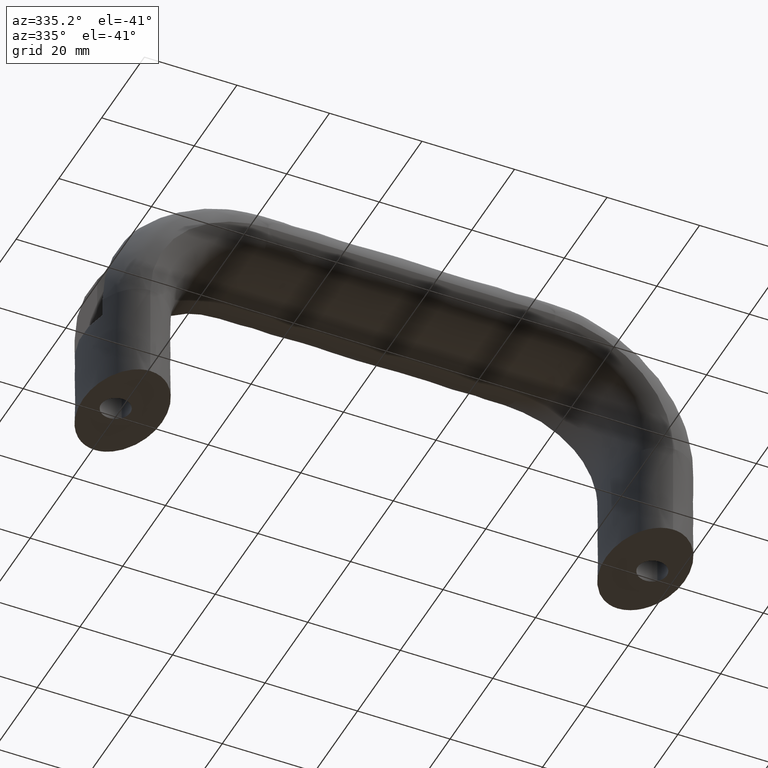
[diagram: clean part render]
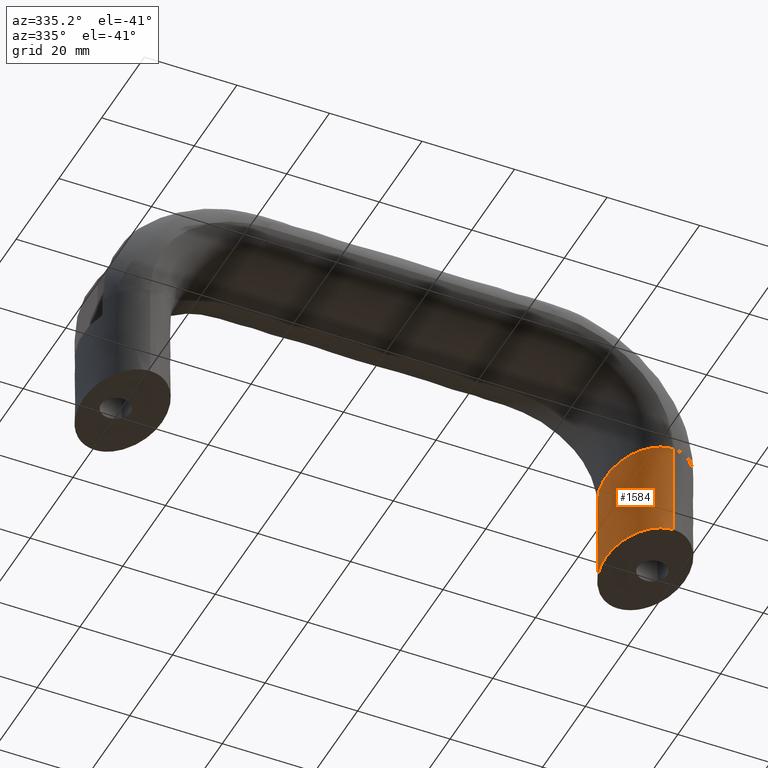
[diagram: same view with one face highlighted and labeled with its STEP entity id]
A machine part, auxiliary view. The second image highlights one B-rep face of the part: STEP entity #1584.
In plain terms, the highlighted face is a freeform B-spline surface patch.
Its self-contained STEP definition (entity closure, byte-faithful):
#1346=CARTESIAN_POINT('',(114.500000000000000,-13.0,0.0));
#1347=VERTEX_POINT('',#1346);
#1348=CARTESIAN_POINT('',(114.500000000000000,13.0,0.0));
#1349=VERTEX_POINT('',#1348);
#1350=CARTESIAN_POINT('',(114.500000000000000,-13.0,0.0));
#1351=CARTESIAN_POINT('',(113.938783469140200,-12.999923555473890,0.0));
#1352=CARTESIAN_POINT('',(112.789287256323800,-12.826448815746449,0.0));
#1353=CARTESIAN_POINT('',(111.166448477824010,-12.048173097890791,0.0));
#1354=CARTESIAN_POINT('',(109.684781999559500,-10.820089666729469,0.0));
#1355=CARTESIAN_POINT('',(108.406739283075100,-9.179092621455494,0.0));
#1356=CARTESIAN_POINT('',(107.355332791935690,-7.203180913506930,0.0));
#1357=CARTESIAN_POINT('',(106.585128865630690,-4.955443427318297,0.0));
#1358=CARTESIAN_POINT('',(106.103593419317510,-2.525474827544324,0.0));
#1359=CARTESIAN_POINT('',(105.947636965267900,-0.000251144950792,0.0));
#1360=CARTESIAN_POINT('',(106.103561763330500,2.525220537792868,0.0));
#1361=CARTESIAN_POINT('',(106.585002686258510,4.954978805941556,0.0));
#1362=CARTESIAN_POINT('',(107.355241463287700,7.202963600868551,0.0));
#1363=CARTESIAN_POINT('',(108.406507364572210,9.178731382855483,0.0));
#1364=CARTESIAN_POINT('',(109.684635495193500,10.819954240114329,0.0));
#1365=CARTESIAN_POINT('',(111.166288104873400,12.048026096018891,0.0));
#1366=CARTESIAN_POINT('',(112.789205874942200,12.826641637256030,0.0));
#1367=CARTESIAN_POINT('',(113.938763128606400,12.999989496861160,0.0));
#1368=CARTESIAN_POINT('',(114.500000000000000,13.0,0.0));
#1369=B_SPLINE_CURVE_WITH_KNOTS('',3,(#1350,#1351,#1352,#1353,#1354,#1355,#1356,#1357,#1358,#1359,#1360,#1361,#1362,#1363,#1364,#1365,#1366,#1367,#1368),.UNSPECIFIED.,.F.,.U.,(4,1,1,1,1,1,1,1,1,1,1,1,1,1,1,1,4),(0.0,4.919669910340897,10.077038666492500,15.642055218078429,21.709350619219769,28.264543187207291,35.251711814918082,42.542922331076518,49.999875837806393,57.454615628122319,64.748039643699002,71.733178943171765,78.290400034022625,84.355961067414384,89.922710252192644,95.080009697525966,99.999857905519733),.UNSPECIFIED.);
#1370=EDGE_CURVE('',#1347,#1349,#1369,.T.);
#1462=CARTESIAN_POINT('',(114.500000000000000,13.0,21.0));
#1463=VERTEX_POINT('',#1462);
#1464=CARTESIAN_POINT('',(114.500000000000000,13.0,21.0));
#1465=CARTESIAN_POINT('',(114.500000000000000,13.0,0.0));
#1466=QUASI_UNIFORM_CURVE('',1,(#1464,#1465),.UNSPECIFIED.,.F.,.U.);
#1467=EDGE_CURVE('',#1463,#1349,#1466,.T.);
#1483=CARTESIAN_POINT('',(114.500000000000000,-13.0,21.0));
#1484=VERTEX_POINT('',#1483);
#1496=CARTESIAN_POINT('',(114.500000000000000,-13.0,21.0));
#1497=CARTESIAN_POINT('',(114.500000000000000,-13.0,0.0));
#1498=QUASI_UNIFORM_CURVE('',1,(#1496,#1497),.UNSPECIFIED.,.F.,.U.);
#1499=EDGE_CURVE('',#1484,#1347,#1498,.T.);
#1505=CARTESIAN_POINT('',(114.767035375555200,-13.0,21.210000000000001));
#1506=CARTESIAN_POINT('',(114.678021180663090,-12.999001277163620,21.210000000000001));
#1507=CARTESIAN_POINT('',(113.476429468037400,-13.027045414409240,21.210000000000001));
#1508=CARTESIAN_POINT('',(111.162528916449700,-12.323036565618350,21.210000000000001));
#1509=CARTESIAN_POINT('',(109.276271989157490,-10.395617706442160,21.210000000000001));
#1510=CARTESIAN_POINT('',(106.916071319316600,-6.785826563922671,21.210000000000001));
#1511=CARTESIAN_POINT('',(106.0,-3.403392041388941,21.210000000000001));
#1512=CARTESIAN_POINT('',(106.0,3.403392041388945,21.210000000000001));
#1513=CARTESIAN_POINT('',(106.916071319316600,6.785826563922680,21.210000000000001));
#1514=CARTESIAN_POINT('',(109.276271989157490,10.395617706442160,21.210000000000001));
#1515=CARTESIAN_POINT('',(111.162528916449700,12.323036565618350,21.210000000000001));
#1516=CARTESIAN_POINT('',(113.476429468037400,13.027045414409240,21.210000000000001));
#1517=CARTESIAN_POINT('',(114.678021180663090,12.999001277163620,21.210000000000001));
#1518=CARTESIAN_POINT('',(114.767035375555200,13.0,21.210000000000001));
#1519=CARTESIAN_POINT('',(114.767035375555200,-13.0,14.069999999999990));
#1520=CARTESIAN_POINT('',(114.678021180663090,-12.999001277163620,14.070000000000000));
#1521=CARTESIAN_POINT('',(113.476429468037400,-13.027045414409240,14.070000000000000));
#1522=CARTESIAN_POINT('',(111.162528916449700,-12.323036565618350,14.069999999999990));
#1523=CARTESIAN_POINT('',(109.276271989157490,-10.395617706442151,14.069999999999990));
#1524=CARTESIAN_POINT('',(106.916071319316600,-6.785826563922672,14.069999999999990));
#1525=CARTESIAN_POINT('',(106.0,-3.403392041388941,14.069999999999990));
#1526=CARTESIAN_POINT('',(106.0,3.403392041388945,14.069999999999990));
#1527=CARTESIAN_POINT('',(106.916071319316600,6.785826563922680,14.069999999999990));
#1528=CARTESIAN_POINT('',(109.276271989157490,10.395617706442151,14.069999999999990));
#1529=CARTESIAN_POINT('',(111.162528916449700,12.323036565618350,14.070000000000000));
#1530=CARTESIAN_POINT('',(113.476429468037400,13.027045414409240,14.070000000000000));
#1531=CARTESIAN_POINT('',(114.678021180663090,12.999001277163620,14.069999999999990));
#1532=CARTESIAN_POINT('',(114.767035375555200,13.0,14.069999999999990));
#1533=CARTESIAN_POINT('',(114.767035375555200,-13.0,6.930000000000294));
#1534=CARTESIAN_POINT('',(114.678021180663090,-12.999001277163620,6.930000000000295));
#1535=CARTESIAN_POINT('',(113.476429468037400,-13.027045414409240,6.930000000000288));
#1536=CARTESIAN_POINT('',(111.162528916449700,-12.323036565618350,6.930000000000288));
#1537=CARTESIAN_POINT('',(109.276271989157490,-10.395617706442151,6.930000000000288));
#1538=CARTESIAN_POINT('',(106.916071319316600,-6.785826563922672,6.930000000000288));
#1539=CARTESIAN_POINT('',(106.0,-3.403392041388941,6.930000000000288));
#1540=CARTESIAN_POINT('',(106.0,3.403392041388945,6.930000000000288));
#1541=CARTESIAN_POINT('',(106.916071319316600,6.785826563922680,6.930000000000288));
#1542=CARTESIAN_POINT('',(109.276271989157490,10.395617706442151,6.930000000000288));
#1543=CARTESIAN_POINT('',(111.162528916449700,12.323036565618350,6.930000000000288));
#1544=CARTESIAN_POINT('',(113.476429468037400,13.027045414409240,6.930000000000289));
#1545=CARTESIAN_POINT('',(114.678021180663090,12.999001277163620,6.930000000000295));
#1546=CARTESIAN_POINT('',(114.767035375555200,13.0,6.930000000000294));
#1547=CARTESIAN_POINT('',(114.767035375555200,-13.0,-0.210000000000008));
#1548=CARTESIAN_POINT('',(114.678021180663090,-12.999001277163620,-0.210000000000008));
#1549=CARTESIAN_POINT('',(113.476429468037400,-13.027045414409240,-0.210000000000008));
#1550=CARTESIAN_POINT('',(111.162528916449700,-12.323036565618350,-0.210000000000008));
#1551=CARTESIAN_POINT('',(109.276271989157490,-10.395617706442160,-0.210000000000008));
#1552=CARTESIAN_POINT('',(106.916071319316600,-6.785826563922671,-0.210000000000008));
#1553=CARTESIAN_POINT('',(106.0,-3.403392041388941,-0.210000000000008));
#1554=CARTESIAN_POINT('',(106.0,3.403392041388945,-0.210000000000008));
#1555=CARTESIAN_POINT('',(106.916071319316600,6.785826563922680,-0.210000000000008));
#1556=CARTESIAN_POINT('',(109.276271989157490,10.395617706442160,-0.210000000000008));
#1557=CARTESIAN_POINT('',(111.162528916449700,12.323036565618350,-0.210000000000008));
#1558=CARTESIAN_POINT('',(113.476429468037400,13.027045414409240,-0.210000000000008));
#1559=CARTESIAN_POINT('',(114.678021180663090,12.999001277163620,-0.210000000000008));
#1560=CARTESIAN_POINT('',(114.767035375555200,13.0,-0.210000000000008));
#1561=B_SPLINE_SURFACE_WITH_KNOTS('',3,3,((#1505,#1519,#1533,#1547),(#1506,#1520,#1534,#1548),(#1507,#1521,#1535,#1549),(#1508,#1522,#1536,#1550),(#1509,#1523,#1537,#1551),(#1510,#1524,#1538,#1552),(#1511,#1525,#1539,#1553),(#1512,#1526,#1540,#1554),(#1513,#1527,#1541,#1555),(#1514,#1528,#1542,#1556),(#1515,#1529,#1543,#1557),(#1516,#1530,#1544,#1558),(#1517,#1531,#1545,#1559),(#1518,#1532,#1546,#1560)),.UNSPECIFIED.,.F.,.F.,.U.,(4,1,1,2,2,2,1,1,4),(4,4),(0.0,0.400139247064744,5.401879835373237,10.403620423681730,20.407101600298709,30.410582776915689,35.412323365224182,40.414063953532683,40.814203200597383),(0.0,21.420000000000901),.UNSPECIFIED.);
#1562=ORIENTED_EDGE('',*,*,#1467,.T.);
#1563=ORIENTED_EDGE('',*,*,#1370,.F.);
#1564=ORIENTED_EDGE('',*,*,#1499,.F.);
#1565=CARTESIAN_POINT('',(114.500000000000000,-13.0,21.0));
#1566=CARTESIAN_POINT('',(113.387352601853610,-13.0,21.0));
#1567=CARTESIAN_POINT('',(112.275142982945990,-12.661644796688099,21.0));
#1568=CARTESIAN_POINT('',(110.219238666847400,-11.359223048605340,21.0));
#1569=CARTESIAN_POINT('',(109.276352880213200,-10.395668951176340,21.0));
#1570=CARTESIAN_POINT('',(106.916071319316600,-6.785826563922671,21.0));
#1571=CARTESIAN_POINT('',(106.0,-3.403392041388941,21.0));
#1572=CARTESIAN_POINT('',(106.0,3.403392041388945,21.0));
#1573=CARTESIAN_POINT('',(106.916071319316600,6.785826563922680,21.0));
#1574=CARTESIAN_POINT('',(109.276352880213200,10.395668951176340,21.0));
#1575=CARTESIAN_POINT('',(110.219238666847400,11.359223048605340,21.0));
#1576=CARTESIAN_POINT('',(112.275142982945990,12.661644796688110,21.0));
#1577=CARTESIAN_POINT('',(113.387352601853610,13.0,21.0));
#1578=CARTESIAN_POINT('',(114.500000000000000,13.0,21.0));
#1579=B_SPLINE_CURVE_WITH_KNOTS('',3,(#1565,#1566,#1567,#1568,#1569,#1570,#1571,#1572,#1573,#1574,#1575,#1576,#1577,#1578),.UNSPECIFIED.,.F.,.U.,(4,2,2,2,2,2,4),(0.199958338434562,0.274968753825406,0.349979169216250,0.499999999997938,0.650020830779625,0.725031246170469,0.800041661561313),.UNSPECIFIED.);
#1580=EDGE_CURVE('',#1484,#1463,#1579,.T.);
#1581=ORIENTED_EDGE('',*,*,#1580,.T.);
#1582=EDGE_LOOP('',(#1562,#1563,#1564,#1581));
#1583=FACE_OUTER_BOUND('',#1582,.T.);
#1584=ADVANCED_FACE('',(#1583),#1561,.T.);